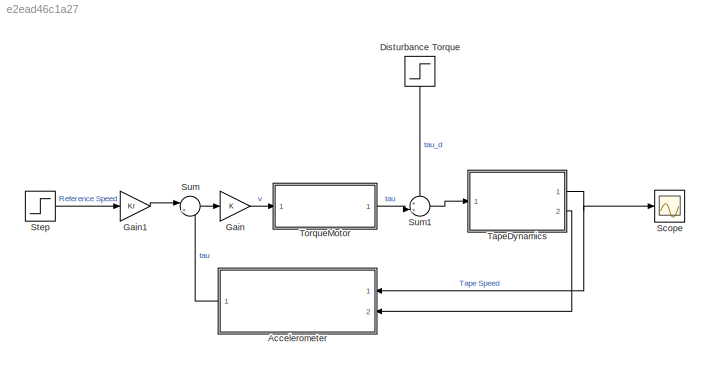
MODEL slx_e2ead46c1a27
KIND model
CONFIG AbsTol = auto
CONFIG EnableMultiTasking = off
CONFIG FixedStep = 0.001
CONFIG MaxStep = auto
CONFIG MinStep = auto
CONFIG RelTol = 1e-3
CONFIG SampleTimeConstraint = Unconstrained
CONFIG SolverName = FixedStepAuto
CONFIG StartTime = 0.0
CONFIG StopTime = 1
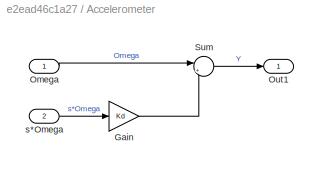
BLOCK [SubSystem] Accelerometer
  Ports = [2, 1]
  RequestExecContextInheritance = off
BLOCK [Gain] Accelerometer/Gain
  Gain = Kd
BLOCK [Inport] Accelerometer/Omega
BLOCK [Outport] Accelerometer/Out1
BLOCK [Sum] Accelerometer/Sum
  Inputs = |++
  Ports = [2, 1]
BLOCK [Inport] Accelerometer/s*Omega
  Port = 2
BLOCK [Step] Disturbance Torque
  After = 0
  NameLocation = left
  SampleTime = 0
  Time = 0
BLOCK [Gain] Gain
  Gain = K
BLOCK [Gain] Gain1
  Gain = Kr
BLOCK [Scope] Scope
  Floating = off
  NumInputPorts = 1
  Ports = [1]
  ScopeSpecificationString = Simulink.scopes.TimeScopeBlockCfg('CurrentConfiguration', extmgr.ConfigurationSet(extmgr.Configuration('Core','General UI',true),extmgr.Configuration('Core','Source UI',true),extmgr.Configuration('Sources','WiredSimulink',true,'DataLogging',true,'DataLoggingVariableName','Omega','DataLoggingSaveFormat','StructureWithTime'),extmgr.Configuration('Visuals','Time Domain',true,'SerializedDisplays',{str...<+1553ch>
BLOCK [Step] Step
  SampleTime = 0
  Time = 0
BLOCK [Sum] Sum
  Inputs = |+-
  Ports = [2, 1]
BLOCK [Sum] Sum1
  Inputs = ++|
  Ports = [2, 1]
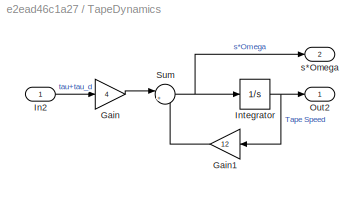
BLOCK [SubSystem] TapeDynamics
  Ports = [1, 2]
  RequestExecContextInheritance = off
BLOCK [Gain] TapeDynamics/Gain
  Gain = 4
BLOCK [Gain] TapeDynamics/Gain1
  Gain = 12
BLOCK [Inport] TapeDynamics/In2
BLOCK [Integrator] TapeDynamics/Integrator
  Ports = [1, 1]
BLOCK [Outport] TapeDynamics/Out2
BLOCK [Sum] TapeDynamics/Sum
  Inputs = |+-
  Ports = [2, 1]
BLOCK [Outport] TapeDynamics/s*Omega
  Port = 2
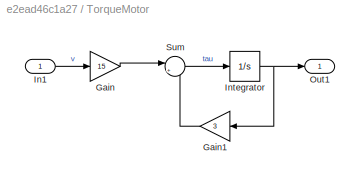
BLOCK [SubSystem] TorqueMotor
  Ports = [1, 1]
  RequestExecContextInheritance = off
BLOCK [Gain] TorqueMotor/Gain
  Gain = 15
BLOCK [Gain] TorqueMotor/Gain1
  Gain = 3
BLOCK [Inport] TorqueMotor/In1
BLOCK [Integrator] TorqueMotor/Integrator
  Ports = [1, 1]
BLOCK [Outport] TorqueMotor/Out1
BLOCK [Sum] TorqueMotor/Sum
  Inputs = |+-
  Ports = [2, 1]
LINE Accelerometer/Gain:1 -> Accelerometer/Sum:2
LINE Accelerometer/Omega:1 -> Accelerometer/Sum:1
LINE Accelerometer/Sum:1 -> Accelerometer/Out1:1
LINE Accelerometer/s*Omega:1 -> Accelerometer/Gain:1
LINE Accelerometer:1 -> Sum:2
LINE Disturbance Torque:1 -> Sum1:1
LINE Gain1:1 -> Sum:1
LINE Gain:1 -> TorqueMotor:1
LINE Step:1 -> Gain1:1
LINE Sum1:1 -> TapeDynamics:1
LINE Sum:1 -> Gain:1
LINE TapeDynamics/Gain1:1 -> TapeDynamics/Sum:2
LINE TapeDynamics/Gain:1 -> TapeDynamics/Sum:1
LINE TapeDynamics/In2:1 -> TapeDynamics/Gain:1
NET TapeDynamics/Integrator:1 -> TapeDynamics/Gain1:1, TapeDynamics/Out2:1
NET TapeDynamics/Sum:1 -> TapeDynamics/Integrator:1, TapeDynamics/s*Omega:1
NET TapeDynamics:1 -> Accelerometer:1, Scope:1
LINE TapeDynamics:2 -> Accelerometer:2
LINE TorqueMotor/Gain1:1 -> TorqueMotor/Sum:2
LINE TorqueMotor/Gain:1 -> TorqueMotor/Sum:1
LINE TorqueMotor/In1:1 -> TorqueMotor/Gain:1
NET TorqueMotor/Integrator:1 -> TorqueMotor/Gain1:1, TorqueMotor/Out1:1
LINE TorqueMotor/Sum:1 -> TorqueMotor/Integrator:1
LINE TorqueMotor:1 -> Sum1:2
note: NET lines group one-source signal fan-out (src -> all destinations, sorted); 1:1 wires keep LINE
